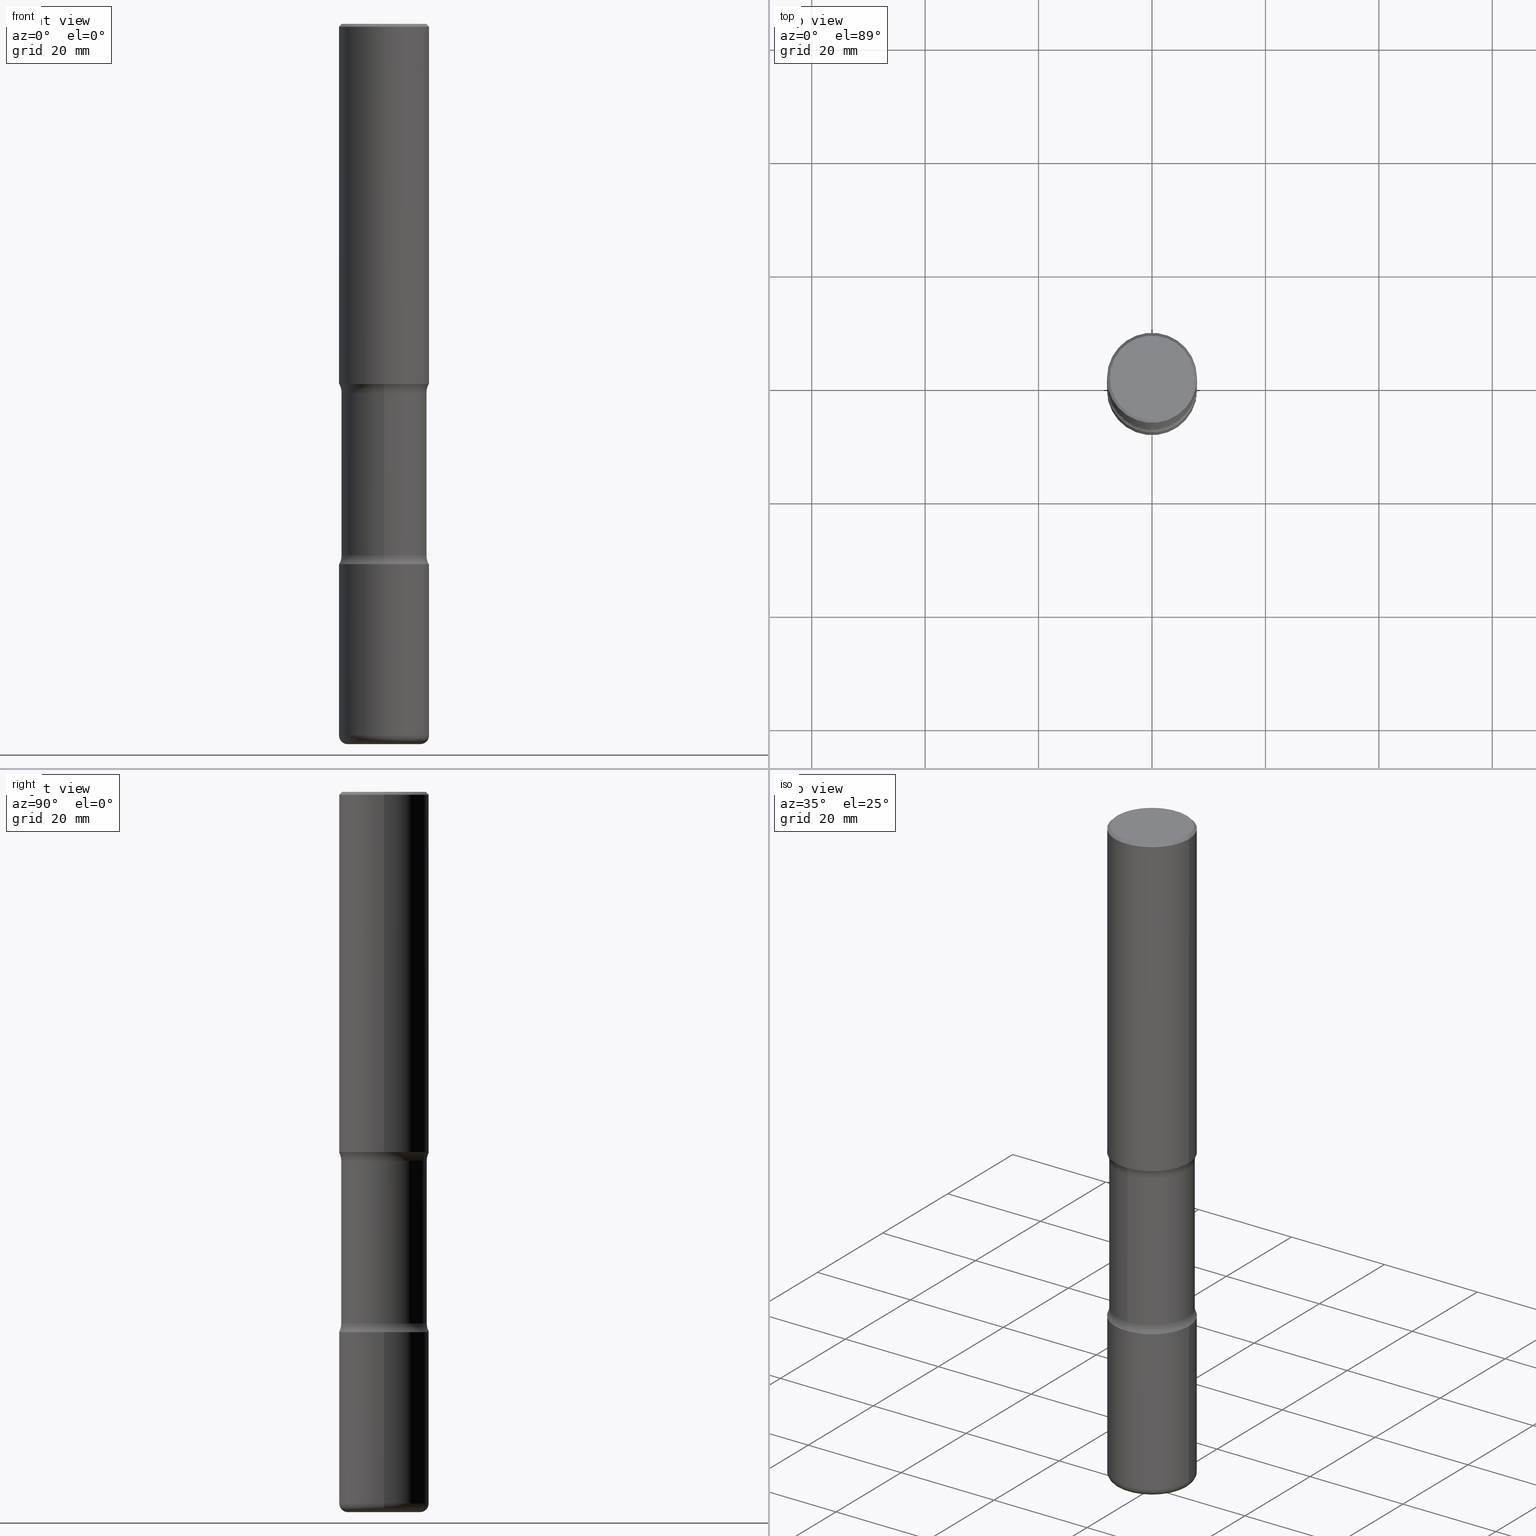
[diagram: canonical four-view strip — front | top / right | iso, engineering-drawing reading convention]
A machine part, canonical four-view strip (front | top / right | iso — engineering-drawing reading convention). The complete STEP part file that produces these views, byte-faithful:
ISO-10303-21;
HEADER;
FILE_DESCRIPTION (( 'STEP AP203' ),
    '1' );
FILE_NAME ('37908.STEP',
    '2024-03-02T01:17:36',
    ( '' ),
    ( '' ),
    'SwSTEP 2.0',
    'SolidWorks 2023',
    '' );
FILE_SCHEMA (( 'CONFIG_CONTROL_DESIGN' ));
ENDSEC;

DATA;
#1 = DIRECTION ( 'NONE',  ( 6.860497997771529985E-15, 1.000000000000000000, 0.000000000000000000 ) ) ;
#2 = CIRCLE ( 'NONE', #525, 0.3125000000000002776 ) ;
#3 = PERSON_AND_ORGANIZATION ( #505, #123 ) ;
#4 = APPROVAL_PERSON_ORGANIZATION ( #538, #241, #91 ) ;
#5 = CARTESIAN_POINT ( 'NONE',  ( 0.000000000000000000, 0.000000000000000000, 0.000000000000000000 ) ) ;
#6 = CYLINDRICAL_SURFACE ( 'NONE', #286, 0.2968750000000000000 ) ;
#7 = DIRECTION ( 'NONE',  ( 6.860497997771529985E-15, 1.000000000000000000, 0.000000000000000000 ) ) ;
#8 = CARTESIAN_POINT ( 'NONE',  ( 1.208061590255457820E-28, -1.724791781388514630E-14, -4.940000000000001279 ) ) ;
#9 = AXIS2_PLACEMENT_3D ( 'NONE', #40, #377, #251 ) ;
#10 = CYLINDRICAL_SURFACE ( 'NONE', #163, 0.3125000000000002220 ) ;
#11 = AXIS2_PLACEMENT_3D ( 'NONE', #481, #136, #193 ) ;
#12 = DATE_TIME_ROLE ( 'creation_date' ) ;
#13 = DIRECTION ( 'NONE',  ( -2.438088387897960049E-29, 3.491481338843145188E-15, 1.000000000000000000 ) ) ;
#14 = ORIENTED_EDGE ( 'NONE', *, *, #162, .T. ) ;
#15 = CARTESIAN_POINT ( 'NONE',  ( 4.890937612370289799E-31, -6.982962677686315028E-17, -0.02000000000000006981 ) ) ;
#16 = VERTEX_POINT ( 'NONE', #245 ) ;
#17 = CARTESIAN_POINT ( 'NONE',  ( -0.3125000000000002220, 2.220446049250314659E-15, -1.537167215704659073E-29 ) ) ;
#18 = DIRECTION ( 'NONE',  ( 1.000000000000000000, 0.000000000000000000, 0.000000000000000000 ) ) ;
#19 = COORDINATED_UNIVERSAL_TIME_OFFSET ( 5, 0, .BEHIND. ) ;
#20 = AXIS2_PLACEMENT_3D ( 'NONE', #231, #402, #407 ) ;
#21 = EDGE_CURVE ( 'NONE', #257, #173, #409, .T. ) ;
#22 = AXIS2_PLACEMENT_3D ( 'NONE', #145, #316, #492 ) ;
#23 = DIRECTION ( 'NONE',  ( 6.982962677686265133E-15, 1.000000000000000000, -3.680805717779217644E-15 ) ) ;
#24 = EDGE_CURVE ( 'NONE', #469, #311, #373, .T. ) ;
#25 = DIRECTION ( 'NONE',  ( -1.000000000000000000, 6.982962677686265922E-15, -4.876176775795935793E-29 ) ) ;
#26 = DIRECTION ( 'NONE',  ( 2.521457479434076939E-29, -3.382661233743975076E-15, -1.000000000000000000 ) ) ;
#27 = DIRECTION ( 'NONE',  ( 2.445468806185136597E-29, -3.491481338843145583E-15, -1.000000000000000000 ) ) ;
#28 = FACE_OUTER_BOUND ( 'NONE', #154, .T. ) ;
#29 = FACE_OUTER_BOUND ( 'NONE', #381, .T. ) ;
#30 = CIRCLE ( 'NONE', #500, 0.3125000000000002220 ) ;
#31 = AXIS2_PLACEMENT_3D ( 'NONE', #39, #211, #1 ) ;
#32 = FACE_OUTER_BOUND ( 'NONE', #261, .T. ) ;
#33 = ADVANCED_FACE ( 'NONE', ( #432 ), #10, .T. ) ;
#34 = DIRECTION ( 'NONE',  ( 0.7071067811865472397, -7.319954787623254468E-15, -0.7071067811865477948 ) ) ;
#35 = MANIFOLD_SOLID_BREP ( 'Body-Move/Copy2[4]', #37 ) ;
#36 = MANIFOLD_SOLID_BREP ( 'Body-Move/Copy2[2]', #269 ) ;
#37 = CLOSED_SHELL ( 'NONE', ( #44, #356, #501, #557, #265, #306, #90, #497 ) ) ;
#38 = CIRCLE ( 'NONE', #301, 0.2968750000000000000 ) ;
#39 = CARTESIAN_POINT ( 'NONE',  ( -2.894272592809775342E-15, -0.4218750000000130451, -3.689484635215506625 ) ) ;
#40 = CARTESIAN_POINT ( 'NONE',  ( -1.043851414335219820E-46, 1.490343170380447200E-32, 4.268512490100411279E-18 ) ) ;
#41 = AXIS2_PLACEMENT_3D ( 'NONE', #128, #225, #395 ) ;
#42 = AXIS2_PLACEMENT_3D ( 'NONE', #416, #205, #60 ) ;
#43 = ORIENTED_EDGE ( 'NONE', *, *, #326, .F. ) ;
#44 = ADVANCED_FACE ( 'NONE', ( #169 ), #6, .T. ) ;
#45 = ORIENTED_EDGE ( 'NONE', *, *, #94, .T. ) ;
#46 = ORIENTED_EDGE ( 'NONE', *, *, #508, .T. ) ;
#47 = DATE_TIME_ROLE ( 'classification_date' ) ;
#48 = ADVANCED_FACE ( 'NONE', ( #125 ), #346, .T. ) ;
#49 = CARTESIAN_POINT ( 'NONE',  ( -0.3125000000000000000, 2.220446049250313081E-15, -1.537167215704658232E-29 ) ) ;
#50 = AXIS2_PLACEMENT_3D ( 'NONE', #178, #541, #25 ) ;
#51 = VECTOR ( 'NONE', #515, 39.37007874015748143 ) ;
#52 = ORIENTED_EDGE ( 'NONE', *, *, #284, .F. ) ;
#53 = PRODUCT_DEFINITION_SHAPE ( 'NONE', 'NONE',  #414 ) ;
#54 = CARTESIAN_POINT ( 'NONE',  ( 9.022519586318873617E-29, -1.288176675380345821E-14, -3.689484635215508401 ) ) ;
#55 = ADVANCED_FACE ( 'NONE', ( #307 ), #187, .F. ) ;
#56 = APPLICATION_PROTOCOL_DEFINITION ( 'international standard', 'config_control_design', 1994, #275 ) ;
#57 = DIRECTION ( 'NONE',  ( 2.521457479434076939E-29, -3.382661233743975076E-15, -1.000000000000000000 ) ) ;
#58 = CARTESIAN_POINT ( 'NONE',  ( 6.113672015462840371E-29, -8.728703347107863365E-15, -2.499999999999999556 ) ) ;
#59 = DIRECTION ( 'NONE',  ( 1.000000000000000000, -6.982962677686266711E-15, 0.000000000000000000 ) ) ;
#60 = DIRECTION ( 'NONE',  ( 6.982962677686266711E-15, 1.000000000000000000, -3.680805717779217644E-15 ) ) ;
#61 = COORDINATED_UNIVERSAL_TIME_OFFSET ( 5, 0, .BEHIND. ) ;
#62 = CARTESIAN_POINT ( 'NONE',  ( 9.017921104037724021E-29, -1.288835204215942242E-14, -3.689484635215508401 ) ) ;
#63 = EDGE_CURVE ( 'NONE', #506, #504, #510, .T. ) ;
#64 = ORIENTED_EDGE ( 'NONE', *, *, #133, .T. ) ;
#65 = AXIS2_PLACEMENT_3D ( 'NONE', #533, #223, #350 ) ;
#66 = EDGE_LOOP ( 'NONE', ( #465, #67, #477, #197 ) ) ;
#67 = ORIENTED_EDGE ( 'NONE', *, *, #24, .F. ) ;
#68 = AXIS2_PLACEMENT_3D ( 'NONE', #551, #201, #132 ) ;
#69 = AXIS2_PLACEMENT_3D ( 'NONE', #363, #57, #450 ) ;
#70 = LINE ( 'NONE', #560, #51 ) ;
#71 = CARTESIAN_POINT ( 'NONE',  ( 2.182175836777050644E-15, 0.3124999999999870104, -3.750000000000000888 ) ) ;
#72 = ORIENTED_EDGE ( 'NONE', *, *, #520, .F. ) ;
#73 = DIRECTION ( 'NONE',  ( 1.000000000000000000, -6.982962677686265133E-15, 0.000000000000000000 ) ) ;
#74 = ADVANCED_FACE ( 'NONE', ( #146 ), #530, .T. ) ;
#75 = EDGE_LOOP ( 'NONE', ( #353, #194, #391, #215 ) ) ;
#76 = AXIS2_PLACEMENT_3D ( 'NONE', #8, #343, #526 ) ;
#77 = DATE_AND_TIME ( #386, #419 ) ;
#78 = EDGE_LOOP ( 'NONE', ( #528, #216 ) ) ;
#79 = CARTESIAN_POINT ( 'NONE',  ( 0.000000000000000000, 0.000000000000000000, 0.000000000000000000 ) ) ;
#80 = MANIFOLD_SOLID_BREP ( 'Body-Move/Copy2[1]', #293 ) ;
#81 = EDGE_LOOP ( 'NONE', ( #295, #302, #425, #64 ) ) ;
#82 = LINE ( 'NONE', #17, #335 ) ;
#83 = VECTOR ( 'NONE', #142, 39.37007874015748143 ) ;
#84 = DIRECTION ( 'NONE',  ( 1.000000000000000000, -6.982962677686262766E-15, 0.000000000000000000 ) ) ;
#85 = DIRECTION ( 'NONE',  ( 1.000000000000000000, -6.982962677686266711E-15, 0.000000000000000000 ) ) ;
#86 = ORIENTED_EDGE ( 'NONE', *, *, #124, .F. ) ;
#87 = CARTESIAN_POINT ( 'NONE',  ( -2.090307983695953569E-15, -0.2968750000000091038, -2.560515364784489822 ) ) ;
#88 = APPROVAL_STATUS ( 'not_yet_approved' ) ;
#89 = ORIENTED_EDGE ( 'NONE', *, *, #548, .T. ) ;
#90 = ADVANCED_FACE ( 'NONE', ( #174 ), #344, .F. ) ;
#91 = APPROVAL_ROLE ( '' ) ;
#92 = DIRECTION ( 'NONE',  ( 2.521457479434076939E-29, -3.382661233743975076E-15, -1.000000000000000000 ) ) ;
#93 = VERTEX_POINT ( 'NONE', #121 ) ;
#94 = EDGE_CURVE ( 'NONE', #111, #325, #114, .T. ) ;
#95 = FACE_OUTER_BOUND ( 'NONE', #304, .T. ) ;
#96 = PERSON_AND_ORGANIZATION_ROLE ( 'classification_officer' ) ;
#97 = PERSON_AND_ORGANIZATION_ROLE ( 'design_owner' ) ;
#98 = CARTESIAN_POINT ( 'NONE',  ( 6.113672015462840371E-29, -8.728703347107863365E-15, -2.499999999999999556 ) ) ;
#99 = DIRECTION ( 'NONE',  ( -2.445468806185136597E-29, 3.491481338843145583E-15, 1.000000000000000000 ) ) ;
#100 = CARTESIAN_POINT ( 'NONE',  ( 0.3125000000000000000, -1.943009365066209992E-14, -4.940000000000001279 ) ) ;
#101 = DIRECTION ( 'NONE',  ( -2.445468806185136597E-29, 3.491481338843145583E-15, 1.000000000000000000 ) ) ;
#102 = AXIS2_PLACEMENT_3D ( 'NONE', #495, #138, #479 ) ;
#103 = CC_DESIGN_PERSON_AND_ORGANIZATION_ASSIGNMENT ( #475, #482, ( #537 ) ) ;
#104 = CARTESIAN_POINT ( 'NONE',  ( 0.000000000000000000, 0.000000000000000000, 0.000000000000000000 ) ) ;
#105 = DIRECTION ( 'NONE',  ( 2.438088387897960049E-29, -3.491481338843145188E-15, -1.000000000000000000 ) ) ;
#106 = ORIENTED_EDGE ( 'NONE', *, *, #348, .T. ) ;
#107 = AXIS2_PLACEMENT_3D ( 'NONE', #310, #144, #490 ) ;
#108 = DIRECTION ( 'NONE',  ( 2.521457479434076939E-29, -3.382661233743974681E-15, -1.000000000000000000 ) ) ;
#109 = CARTESIAN_POINT ( 'NONE',  ( 1.222734403092568523E-28, -1.745740669421572989E-14, -5.000000000000000000 ) ) ;
#110 = VERTEX_POINT ( 'NONE', #355 ) ;
#111 = VERTEX_POINT ( 'NONE', #150 ) ;
#112 = ORIENTED_EDGE ( 'NONE', *, *, #148, .T. ) ;
#113 = ORIENTED_EDGE ( 'NONE', *, *, #330, .T. ) ;
#114 = CIRCLE ( 'NONE', #333, 0.3125000000000002220 ) ;
#115 = CIRCLE ( 'NONE', #11, 0.2525000000000002798 ) ;
#116 = UNCERTAINTY_MEASURE_WITH_UNIT (LENGTH_MEASURE( 1.000000000000000082E-05 ), #166, 'distance_accuracy_value', 'NONE');
#117 = CARTESIAN_POINT ( 'NONE',  ( 6.113672015462840371E-29, -8.728703347107863365E-15, -2.499999999999999556 ) ) ;
#118 =( LENGTH_UNIT ( ) NAMED_UNIT ( * ) SI_UNIT ( $, .METRE. ) );
#119 = PRODUCT_RELATED_PRODUCT_CATEGORY ( 'detail', '', ( #283 ) ) ;
#120 = ADVANCED_FACE ( 'NONE', ( #396 ), #207, .T. ) ;
#121 = CARTESIAN_POINT ( 'NONE',  ( -2.090307983695922804E-15, -0.2968750000000128786, -3.689484635215507069 ) ) ;
#122 = APPROVAL_DATE_TIME ( #448, #354 ) ;
#123 = ORGANIZATION ( 'UNSPECIFIED', 'UNSPECIFIED', '' ) ;
#124 = EDGE_CURVE ( 'NONE', #504, #323, #135, .T. ) ;
#125 = FACE_OUTER_BOUND ( 'NONE', #376, .T. ) ;
#126 = ORIENTED_EDGE ( 'NONE', *, *, #546, .F. ) ;
#127 = ORIENTED_EDGE ( 'NONE', *, *, #532, .T. ) ;
#128 = CARTESIAN_POINT ( 'NONE',  ( 1.222734403092568523E-28, -1.745740669421572989E-14, -5.000000000000000000 ) ) ;
#129 = PLANE ( 'NONE',  #242 ) ;
#130 = PERSON_AND_ORGANIZATION ( #505, #123 ) ;
#131 = ORIENTED_EDGE ( 'NONE', *, *, #405, .T. ) ;
#132 = DIRECTION ( 'NONE',  ( 6.982962677686265133E-15, 1.000000000000000000, -3.496765431890254947E-15 ) ) ;
#133 = EDGE_CURVE ( 'NONE', #392, #93, #523, .T. ) ;
#134 = EDGE_LOOP ( 'NONE', ( #112, #498, #52, #72 ) ) ;
#135 = CIRCLE ( 'NONE', #20, 0.3125000000000002776 ) ;
#136 = DIRECTION ( 'NONE',  ( -2.445468806185136597E-29, 3.491481338843145583E-15, 1.000000000000000000 ) ) ;
#137 = SHAPE_DEFINITION_REPRESENTATION ( #53, #462 ) ;
#138 = DIRECTION ( 'NONE',  ( 2.445468806185136597E-29, -3.491481338843145583E-15, -1.000000000000000000 ) ) ;
#139 = EDGE_CURVE ( 'NONE', #158, #160, #455, .T. ) ;
#140 = ORIENTED_EDGE ( 'NONE', *, *, #233, .F. ) ;
#141 = DIRECTION ( 'NONE',  ( 2.521457479434076939E-29, -3.382661233743975076E-15, -1.000000000000000000 ) ) ;
#142 = DIRECTION ( 'NONE',  ( -0.7071067811865472397, 2.468850131082253905E-15, -0.7071067811865477948 ) ) ;
#143 = DIRECTION ( 'NONE',  ( 1.000000000000000000, -6.982962677686266711E-15, 0.000000000000000000 ) ) ;
#144 = DIRECTION ( 'NONE',  ( -2.445468806185136597E-29, 3.491481338843145583E-15, 1.000000000000000000 ) ) ;
#145 = CARTESIAN_POINT ( 'NONE',  ( 2.945937379648955300E-15, 0.4218749999999909517, -2.560515364784492487 ) ) ;
#146 = FACE_OUTER_BOUND ( 'NONE', #134, .T. ) ;
#147 = VECTOR ( 'NONE', #327, 39.37007874015748143 ) ;
#148 = EDGE_CURVE ( 'NONE', #325, #111, #30, .T. ) ;
#149 = TOROIDAL_SURFACE ( 'NONE', #429, 0.4218750000000000555, 0.1250000000000000000 ) ;
#150 = CARTESIAN_POINT ( 'NONE',  ( -0.3125000000000002220, -2.178820437692046306E-15, -2.499999999999999556 ) ) ;
#151 = DIRECTION ( 'NONE',  ( -1.000000000000000000, 6.982962677686265922E-15, -4.876176775795935793E-29 ) ) ;
#152 = ORIENTED_EDGE ( 'NONE', *, *, #217, .F. ) ;
#153 = CYLINDRICAL_SURFACE ( 'NONE', #42, 0.2968750000000000000 ) ;
#154 = EDGE_LOOP ( 'NONE', ( #203, #380, #382, #458 ) ) ;
#155 = CARTESIAN_POINT ( 'NONE',  ( 0.2525000000000002798, -1.922060477033151318E-14, -5.000000000000000000 ) ) ;
#156 = AXIS2_PLACEMENT_3D ( 'NONE', #447, #476, #367 ) ;
#157 = VECTOR ( 'NONE', #34, 39.37007874015748143 ) ;
#158 = VERTEX_POINT ( 'NONE', #313 ) ;
#159 = CARTESIAN_POINT ( 'NONE',  ( 0.2525000000000002798, -1.901111589000092644E-14, -4.940000000000001279 ) ) ;
#160 = VERTEX_POINT ( 'NONE', #237 ) ;
#161 = EDGE_LOOP ( 'NONE', ( #442, #259 ) ) ;
#162 = EDGE_CURVE ( 'NONE', #206, #274, #228, .T. ) ;
#163 = AXIS2_PLACEMENT_3D ( 'NONE', #5, #338, #292 ) ;
#164 = AXIS2_PLACEMENT_3D ( 'NONE', #58, #13, #443 ) ;
#165 = CARTESIAN_POINT ( 'NONE',  ( 4.890937612370289799E-31, -6.982962677686315028E-17, -0.02000000000000006981 ) ) ;
#166 =( CONVERSION_BASED_UNIT ( 'INCH', #340 ) LENGTH_UNIT ( ) NAMED_UNIT ( #503 ) );
#167 = CARTESIAN_POINT ( 'NONE',  ( 1.208061590255457820E-28, -1.724791781388514630E-14, -4.940000000000001279 ) ) ;
#168 = DIRECTION ( 'NONE',  ( 1.000000000000000000, -6.982962677686266711E-15, 0.000000000000000000 ) ) ;
#169 = FACE_OUTER_BOUND ( 'NONE', #423, .T. ) ;
#170 = ORIENTED_EDGE ( 'NONE', *, *, #471, .T. ) ;
#171 = CARTESIAN_POINT ( 'NONE',  ( 0.000000000000000000, 0.000000000000000000, 0.000000000000000000 ) ) ;
#172 = EDGE_LOOP ( 'NONE', ( #113, #282, #140, #152 ) ) ;
#173 = VERTEX_POINT ( 'NONE', #87 ) ;
#174 = FACE_OUTER_BOUND ( 'NONE', #81, .T. ) ;
#175 = AXIS2_PLACEMENT_3D ( 'NONE', #384, #334, #518 ) ;
#176 = CARTESIAN_POINT ( 'NONE',  ( 1.232232987248685960E-28, -1.732138156284176685E-14, -5.000000000000000000 ) ) ;
#177 = FACE_OUTER_BOUND ( 'NONE', #300, .T. ) ;
#178 = CARTESIAN_POINT ( 'NONE',  ( 2.042516583223231356E-15, 0.2924999999999998157, -1.019124035366569212E-15 ) ) ;
#179 = APPROVAL_DATE_TIME ( #266, #241 ) ;
#180 = ORIENTED_EDGE ( 'NONE', *, *, #438, .T. ) ;
#181 = DIRECTION ( 'NONE',  ( -2.445468806185136877E-29, 3.491481338843145188E-15, 1.000000000000000000 ) ) ;
#182 = DIRECTION ( 'NONE',  ( -2.445468806185136597E-29, 3.491481338843145583E-15, 1.000000000000000000 ) ) ;
#183 = ORIENTED_EDGE ( 'NONE', *, *, #148, .F. ) ;
#184 = CIRCLE ( 'NONE', #220, 0.1250000000000000000 ) ;
#185 = PERSON_AND_ORGANIZATION ( #505, #123 ) ;
#186 = ORIENTED_EDGE ( 'NONE', *, *, #162, .F. ) ;
#187 = PLANE ( 'NONE',  #50 ) ;
#188 = APPROVAL_STATUS ( 'not_yet_approved' ) ;
#189 = LINE ( 'NONE', #406, #147 ) ;
#190 = DIRECTION ( 'NONE',  ( -2.445468806185136597E-29, 3.491481338843145583E-15, 1.000000000000000000 ) ) ;
#191 = DIRECTION ( 'NONE',  ( 1.000000000000000000, -6.982962677686266711E-15, 4.876176775795936353E-29 ) ) ;
#192 = FACE_OUTER_BOUND ( 'NONE', #263, .T. ) ;
#193 = DIRECTION ( 'NONE',  ( 1.000000000000000000, -6.982962677686261977E-15, 0.000000000000000000 ) ) ;
#194 = ORIENTED_EDGE ( 'NONE', *, *, #124, .T. ) ;
#195 = EDGE_CURVE ( 'NONE', #274, #392, #212, .T. ) ;
#196 = AXIS2_PLACEMENT_3D ( 'NONE', #171, #558, #294 ) ;
#197 = ORIENTED_EDGE ( 'NONE', *, *, #421, .T. ) ;
#198 = CC_DESIGN_APPROVAL ( #354, ( #414 ) ) ;
#199 = CC_DESIGN_APPROVAL ( #241, ( #445 ) ) ;
#200 = DIRECTION ( 'NONE',  ( 6.982962677686265922E-15, 1.000000000000000000, -3.382661233743975076E-15 ) ) ;
#201 = DIRECTION ( 'NONE',  ( 2.521457479434076939E-29, -3.382661233743975076E-15, -1.000000000000000000 ) ) ;
#202 = DIRECTION ( 'NONE',  ( 2.521457479434076939E-29, -3.382661233743975076E-15, -1.000000000000000000 ) ) ;
#203 = ORIENTED_EDGE ( 'NONE', *, *, #508, .F. ) ;
#204 = LINE ( 'NONE', #550, #157 ) ;
#205 = DIRECTION ( 'NONE',  ( 2.521457479434076939E-29, -3.382661233743975076E-15, -1.000000000000000000 ) ) ;
#206 = VERTEX_POINT ( 'NONE', #484 ) ;
#207 = CONICAL_SURFACE ( 'NONE', #102, 0.3124999999999998890, 0.7853981633974479459 ) ;
#208 = VECTOR ( 'NONE', #412, 39.37007874015748143 ) ;
#209 = DIRECTION ( 'NONE',  ( 1.000000000000000000, -6.982962677686261977E-15, 0.000000000000000000 ) ) ;
#210 = CC_DESIGN_PERSON_AND_ORGANIZATION_ASSIGNMENT ( #545, #375, ( #414 ) ) ;
#211 = DIRECTION ( 'NONE',  ( 1.000000000000000000, -6.860497997771530774E-15, 4.842131541558068249E-29 ) ) ;
#212 = CIRCLE ( 'NONE', #387, 0.1250000000000001388 ) ;
#213 = CIRCLE ( 'NONE', #65, 0.3125000000000001665 ) ;
#214 = EDGE_CURVE ( 'NONE', #323, #468, #189, .T. ) ;
#215 = ORIENTED_EDGE ( 'NONE', *, *, #415, .F. ) ;
#216 = ORIENTED_EDGE ( 'NONE', *, *, #326, .T. ) ;
#217 = EDGE_CURVE ( 'NONE', #219, #323, #535, .T. ) ;
#218 = DIRECTION ( 'NONE',  ( 1.000000000000000000, -6.982962677686266711E-15, 4.876176775795936353E-29 ) ) ;
#219 = VERTEX_POINT ( 'NONE', #155 ) ;
#220 = AXIS2_PLACEMENT_3D ( 'NONE', #247, #431, #7 ) ;
#221 = DIRECTION ( 'NONE',  ( 6.982962677686265922E-15, 1.000000000000000000, -3.382661233743975076E-15 ) ) ;
#222 = EDGE_CURVE ( 'NONE', #506, #219, #248, .T. ) ;
#223 = DIRECTION ( 'NONE',  ( 2.521457479434076939E-29, -3.382661233743975076E-15, -1.000000000000000000 ) ) ;
#224 = DIRECTION ( 'NONE',  ( 6.982962677686265922E-15, 1.000000000000000000, -3.382661233743975076E-15 ) ) ;
#225 = DIRECTION ( 'NONE',  ( 2.438088387897960049E-29, -3.491481338843145188E-15, -1.000000000000000000 ) ) ;
#226 = CALENDAR_DATE ( 2024, 1, 3 ) ;
#227 = ORIENTED_EDGE ( 'NONE', *, *, #520, .T. ) ;
#228 = CIRCLE ( 'NONE', #68, 0.3125000000000001665 ) ;
#229 = AXIS2_PLACEMENT_3D ( 'NONE', #547, #329, #239 ) ;
#230 = MECHANICAL_CONTEXT ( 'NONE', #250, 'mechanical' ) ;
#231 = CARTESIAN_POINT ( 'NONE',  ( 1.208061590255457820E-28, -1.724791781388514630E-14, -4.940000000000001279 ) ) ;
#232 = LINE ( 'NONE', #542, #456 ) ;
#233 = EDGE_CURVE ( 'NONE', #323, #504, #321, .T. ) ;
#234 = CARTESIAN_POINT ( 'NONE',  ( 9.170508023194261117E-29, -1.309305502066179584E-14, -3.749999999999999556 ) ) ;
#235 = VECTOR ( 'NONE', #314, 39.37007874015748143 ) ;
#236 = ORIENTED_EDGE ( 'NONE', *, *, #284, .T. ) ;
#237 = CARTESIAN_POINT ( 'NONE',  ( -2.143905624303545238E-15, -0.3125000000000091593, -2.499999999999998668 ) ) ;
#238 = ORIENTED_EDGE ( 'NONE', *, *, #415, .T. ) ;
#239 = DIRECTION ( 'NONE',  ( 6.982962677686265922E-15, 1.000000000000000000, -3.382661233743975076E-15 ) ) ;
#240 = AXIS2_PLACEMENT_3D ( 'NONE', #361, #141, #309 ) ;
#241 = APPROVAL ( #433, 'UNSPECIFIED' ) ;
#242 = AXIS2_PLACEMENT_3D ( 'NONE', #264, #298, #303 ) ;
#243 = FACE_OUTER_BOUND ( 'NONE', #161, .T. ) ;
#244 = ORIENTED_EDGE ( 'NONE', *, *, #133, .F. ) ;
#245 = CARTESIAN_POINT ( 'NONE',  ( -0.3124999999999998890, 2.112346210000094260E-15, -0.02000000000000006981 ) ) ;
#246 = ADVANCED_FACE ( 'NONE', ( #29 ), #369, .T. ) ;
#247 = CARTESIAN_POINT ( 'NONE',  ( -2.894272592809803347E-15, -0.4218750000000091593, -2.560515364784489378 ) ) ;
#248 = CIRCLE ( 'NONE', #463, 0.2525000000000002798 ) ;
#249 = TOROIDAL_SURFACE ( 'NONE', #502, 0.4218750000000001110, 0.1250000000000001388 ) ;
#250 = APPLICATION_CONTEXT ( 'configuration controlled 3d designs of mechanical parts and assemblies' ) ;
#251 = DIRECTION ( 'NONE',  ( 1.000000000000000000, -6.982962677686266711E-15, 4.876067333457692840E-29 ) ) ;
#252 = PERSON_AND_ORGANIZATION_ROLE ( 'design_supplier' ) ;
#253 = ORIENTED_EDGE ( 'NONE', *, *, #471, .F. ) ;
#254 = APPROVAL ( #88, 'UNSPECIFIED' ) ;
#255 = AXIS2_PLACEMENT_3D ( 'NONE', #234, #105, #151 ) ;
#256 = ADVANCED_FACE ( 'NONE', ( #192 ), #365, .T. ) ;
#257 = VERTEX_POINT ( 'NONE', #332 ) ;
#258 = DIRECTION ( 'NONE',  ( -2.445468806185136597E-29, 3.491481338843145583E-15, 1.000000000000000000 ) ) ;
#259 = ORIENTED_EDGE ( 'NONE', *, *, #438, .F. ) ;
#260 = PERSON_AND_ORGANIZATION ( #505, #123 ) ;
#261 = EDGE_LOOP ( 'NONE', ( #559, #474, #436, #86 ) ) ;
#262 = CARTESIAN_POINT ( 'NONE',  ( 0.3125000000000002220, -1.091087918388482329E-14, -2.499999999999999556 ) ) ;
#263 = EDGE_LOOP ( 'NONE', ( #522, #45, #227, #428 ) ) ;
#264 = CARTESIAN_POINT ( 'NONE',  ( 9.170508023194261117E-29, -1.309305502066179584E-14, -3.749999999999999556 ) ) ;
#265 = ADVANCED_FACE ( 'NONE', ( #243 ), #511, .F. ) ;
#266 = DATE_AND_TIME ( #534, #273 ) ;
#267 = PLANE ( 'NONE',  #255 ) ;
#268 = ORIENTED_EDGE ( 'NONE', *, *, #195, .F. ) ;
#269 = CLOSED_SHELL ( 'NONE', ( #74, #246, #120, #55, #370, #256 ) ) ;
#270 = PLANE ( 'NONE',  #164 ) ;
#271 = ORIENTED_EDGE ( 'NONE', *, *, #21, .T. ) ;
#272 = TOROIDAL_SURFACE ( 'NONE', #229, 0.4218750000000000555, 0.1250000000000000000 ) ;
#273 = LOCAL_TIME ( 20, 17, 36.00000000000000000, #351 ) ;
#274 = VERTEX_POINT ( 'NONE', #71 ) ;
#275 = APPLICATION_CONTEXT ( 'configuration controlled 3d designs of mechanical parts and assemblies' ) ;
#276 = DIRECTION ( 'NONE',  ( 2.521457479434076939E-29, -3.382661233743975076E-15, -1.000000000000000000 ) ) ;
#277 = CARTESIAN_POINT ( 'NONE',  ( 4.890937612370289799E-31, -6.982962677686315028E-17, -0.02000000000000006981 ) ) ;
#278 = EDGE_CURVE ( 'NONE', #206, #93, #478, .T. ) ;
#279 = AXIS2_PLACEMENT_3D ( 'NONE', #165, #336, #168 ) ;
#280 = COORDINATED_UNIVERSAL_TIME_OFFSET ( 5, 0, .BEHIND. ) ;
#281 = ORIENTED_EDGE ( 'NONE', *, *, #393, .F. ) ;
#282 = ORIENTED_EDGE ( 'NONE', *, *, #63, .T. ) ;
#283 = PRODUCT ( '37908', '37908', '', ( #230 ) ) ;
#284 = EDGE_CURVE ( 'NONE', #110, #16, #317, .T. ) ;
#285 = ORIENTED_EDGE ( 'NONE', *, *, #546, .T. ) ;
#286 = AXIS2_PLACEMENT_3D ( 'NONE', #176, #342, #524 ) ;
#287 = CIRCLE ( 'NONE', #410, 0.2924999999999998157 ) ;
#288 = DIRECTION ( 'NONE',  ( 2.521457479434076939E-29, -3.382661233743974681E-15, -1.000000000000000000 ) ) ;
#289 = CARTESIAN_POINT ( 'NONE',  ( 9.170508023194261117E-29, -1.309305502066179584E-14, -3.749999999999999556 ) ) ;
#290 = EDGE_CURVE ( 'NONE', #469, #16, #516, .T. ) ;
#291 = EDGE_LOOP ( 'NONE', ( #127, #238 ) ) ;
#292 = DIRECTION ( 'NONE',  ( 1.000000000000000000, -6.982962677686266711E-15, 4.876176775795936353E-29 ) ) ;
#293 = CLOSED_SHELL ( 'NONE', ( #33, #509, #48, #488, #451, #424 ) ) ;
#294 = DIRECTION ( 'NONE',  ( 1.000000000000000000, -6.982962677686266711E-15, 4.876176775795936353E-29 ) ) ;
#295 = ORIENTED_EDGE ( 'NONE', *, *, #278, .F. ) ;
#296 = FACE_OUTER_BOUND ( 'NONE', #172, .T. ) ;
#297 = DESIGN_CONTEXT ( 'detailed design', #275, 'design' ) ;
#298 = DIRECTION ( 'NONE',  ( -2.521457479434076939E-29, 3.382661233743974681E-15, 1.000000000000000000 ) ) ;
#299 = DIRECTION ( 'NONE',  ( -2.445468806185136597E-29, 3.491481338843145583E-15, 1.000000000000000000 ) ) ;
#300 = EDGE_LOOP ( 'NONE', ( #106, #14 ) ) ;
#301 = AXIS2_PLACEMENT_3D ( 'NONE', #62, #26, #454 ) ;
#302 = ORIENTED_EDGE ( 'NONE', *, *, #348, .F. ) ;
#303 = DIRECTION ( 'NONE',  ( -6.982962677686265922E-15, -1.000000000000000000, 3.382661233743974681E-15 ) ) ;
#304 = EDGE_LOOP ( 'NONE', ( #183, #328 ) ) ;
#305 = CARTESIAN_POINT ( 'NONE',  ( 9.017921104037724021E-29, -1.288835204215942242E-14, -3.689484635215508401 ) ) ;
#306 = ADVANCED_FACE ( 'NONE', ( #177 ), #129, .F. ) ;
#307 = FACE_OUTER_BOUND ( 'NONE', #78, .T. ) ;
#308 = APPROVAL_DATE_TIME ( #77, #254 ) ;
#309 = DIRECTION ( 'NONE',  ( 6.982962677686265922E-15, 1.000000000000000000, -3.496765431890253764E-15 ) ) ;
#310 = CARTESIAN_POINT ( 'NONE',  ( 1.208061590255457820E-28, -1.724791781388514630E-14, -4.940000000000001279 ) ) ;
#311 = VERTEX_POINT ( 'NONE', #529 ) ;
#312 = DIRECTION ( 'NONE',  ( 2.521457479434076939E-29, -3.382661233743975076E-15, -1.000000000000000000 ) ) ;
#313 = CARTESIAN_POINT ( 'NONE',  ( 2.182175836777019878E-15, 0.3124999999999913958, -2.500000000000000444 ) ) ;
#314 = DIRECTION ( 'NONE',  ( -2.445468806185136877E-29, 3.491481338843145188E-15, 1.000000000000000000 ) ) ;
#315 = AXIS2_PLACEMENT_3D ( 'NONE', #305, #92, #23 ) ;
#316 = DIRECTION ( 'NONE',  ( -1.000000000000000000, 6.982962677686265922E-15, -4.883557194083112340E-29 ) ) ;
#317 = CIRCLE ( 'NONE', #279, 0.3124999999999998890 ) ;
#318 = DIRECTION ( 'NONE',  ( 6.982962677686265922E-15, 1.000000000000000000, -3.496765431890253764E-15 ) ) ;
#319 = ORIENTED_EDGE ( 'NONE', *, *, #532, .F. ) ;
#320 = APPROVAL_ROLE ( '' ) ;
#321 = CIRCLE ( 'NONE', #397, 0.3125000000000002776 ) ;
#322 = TOROIDAL_SURFACE ( 'NONE', #76, 0.2525000000000002798, 0.05999999999999940797 ) ;
#323 = VERTEX_POINT ( 'NONE', #100 ) ;
#324 = ORIENTED_EDGE ( 'NONE', *, *, #457, .F. ) ;
#325 = VERTEX_POINT ( 'NONE', #262 ) ;
#326 = EDGE_CURVE ( 'NONE', #311, #469, #287, .T. ) ;
#327 = DIRECTION ( 'NONE',  ( -2.445468806185136877E-29, 3.491481338843145188E-15, 1.000000000000000000 ) ) ;
#328 = ORIENTED_EDGE ( 'NONE', *, *, #94, .F. ) ;
#329 = DIRECTION ( 'NONE',  ( 2.521457479434076939E-29, -3.382661233743975076E-15, -1.000000000000000000 ) ) ;
#330 = EDGE_CURVE ( 'NONE', #219, #506, #115, .T. ) ;
#331 = DATE_AND_TIME ( #556, #513 ) ;
#332 = CARTESIAN_POINT ( 'NONE',  ( 2.073067044938171961E-15, 0.2968749999999909517, -2.560515364784492043 ) ) ;
#333 = AXIS2_PLACEMENT_3D ( 'NONE', #394, #182, #59 ) ;
#334 = DIRECTION ( 'NONE',  ( 2.521457479434076939E-29, -3.382661233743975076E-15, -1.000000000000000000 ) ) ;
#335 = VECTOR ( 'NONE', #181, 39.37007874015748143 ) ;
#336 = DIRECTION ( 'NONE',  ( -2.445468806185136597E-29, 3.491481338843145583E-15, 1.000000000000000000 ) ) ;
#337 =( NAMED_UNIT ( * ) SI_UNIT ( $, .STERADIAN. ) SOLID_ANGLE_UNIT ( ) );
#338 = DIRECTION ( 'NONE',  ( -2.445468806185136597E-29, 3.491481338843145583E-15, 1.000000000000000000 ) ) ;
#339 = CARTESIAN_POINT ( 'NONE',  ( -0.2525000000000002798, -1.534537902552815526E-14, -5.000000000000000000 ) ) ;
#340 = LENGTH_MEASURE_WITH_UNIT ( LENGTH_MEASURE( 0.02539999999999999897 ), #118 );
#341 =( NAMED_UNIT ( * ) PLANE_ANGLE_UNIT ( ) SI_UNIT ( $, .RADIAN. ) );
#342 = DIRECTION ( 'NONE',  ( 2.521457479434076939E-29, -3.382661233743975076E-15, -1.000000000000000000 ) ) ;
#343 = DIRECTION ( 'NONE',  ( -2.445468806185136597E-29, 3.491481338843145583E-15, 1.000000000000000000 ) ) ;
#344 = TOROIDAL_SURFACE ( 'NONE', #417, 0.4218750000000001110, 0.1250000000000001388 ) ;
#345 = AXIS2_PLACEMENT_3D ( 'NONE', #117, #288, #466 ) ;
#346 = PLANE ( 'NONE',  #41 ) ;
#347 = EDGE_LOOP ( 'NONE', ( #186, #517, #485, #268 ) ) ;
#348 = EDGE_CURVE ( 'NONE', #274, #206, #213, .T. ) ;
#349 = APPROVAL_ROLE ( '' ) ;
#350 = DIRECTION ( 'NONE',  ( 6.982962677686265133E-15, 1.000000000000000000, -3.496765431890254947E-15 ) ) ;
#351 = COORDINATED_UNIVERSAL_TIME_OFFSET ( 5, 0, .BEHIND. ) ;
#352 = DIRECTION ( 'NONE',  ( 1.000000000000000000, -6.982962677686265133E-15, 0.000000000000000000 ) ) ;
#353 = ORIENTED_EDGE ( 'NONE', *, *, #405, .F. ) ;
#354 = APPROVAL ( #188, 'UNSPECIFIED' ) ;
#355 = CARTESIAN_POINT ( 'NONE',  ( 0.3124999999999998890, -2.213735251080466123E-15, -0.02000000000000006981 ) ) ;
#356 = ADVANCED_FACE ( 'NONE', ( #441 ), #249, .F. ) ;
#357 = TOROIDAL_SURFACE ( 'NONE', #107, 0.2525000000000002798, 0.05999999999999940797 ) ;
#358 = ORIENTED_EDGE ( 'NONE', *, *, #330, .F. ) ;
#359 = DIRECTION ( 'NONE',  ( -1.000000000000000000, 6.982962677686265922E-15, -4.883557194083112340E-29 ) ) ;
#360 = LINE ( 'NONE', #494, #208 ) ;
#361 = CARTESIAN_POINT ( 'NONE',  ( 6.018686173901665994E-29, -8.864728478481826400E-15, -2.499999999999999556 ) ) ;
#362 = SECURITY_CLASSIFICATION_LEVEL ( 'unclassified' ) ;
#363 = CARTESIAN_POINT ( 'NONE',  ( 6.171273093058203090E-29, -9.069431456984199816E-15, -2.560515364784490711 ) ) ;
#364 = CARTESIAN_POINT ( 'NONE',  ( -0.3124999999999998890, 2.112346210000094260E-15, -0.02000000000000006981 ) ) ;
#365 = CYLINDRICAL_SURFACE ( 'NONE', #196, 0.3125000000000000000 ) ;
#366 = CARTESIAN_POINT ( 'NONE',  ( 2.073067044938200360E-15, 0.2968749999999871214, -3.689484635215509289 ) ) ;
#367 = DIRECTION ( 'NONE',  ( -1.000000000000000000, 7.105427357600997914E-15, 0.000000000000000000 ) ) ;
#368 = FACE_OUTER_BOUND ( 'NONE', #521, .T. ) ;
#369 = CONICAL_SURFACE ( 'NONE', #434, 0.3124999999999998890, 0.7853981633974479459 ) ;
#370 = ADVANCED_FACE ( 'NONE', ( #95 ), #270, .F. ) ;
#371 = DIRECTION ( 'NONE',  ( -1.000000000000000000, 6.982962677686266711E-15, 0.000000000000000000 ) ) ;
#372 = CALENDAR_DATE ( 2024, 1, 3 ) ;
#373 = CIRCLE ( 'NONE', #9, 0.2924999999999998157 ) ;
#374 =( GEOMETRIC_REPRESENTATION_CONTEXT ( 3 ) GLOBAL_UNCERTAINTY_ASSIGNED_CONTEXT ( ( #116 ) ) GLOBAL_UNIT_ASSIGNED_CONTEXT ( ( #166, #341, #337 ) ) REPRESENTATION_CONTEXT ( 'NONE', 'WORKASPACE' ) );
#375 = PERSON_AND_ORGANIZATION_ROLE ( 'creator' ) ;
#376 = EDGE_LOOP ( 'NONE', ( #358, #426 ) ) ;
#377 = DIRECTION ( 'NONE',  ( -2.445468806185136597E-29, 3.491481338843145583E-15, 1.000000000000000000 ) ) ;
#378 = AXIS2_PLACEMENT_3D ( 'NONE', #554, #101, #352 ) ;
#379 = CC_DESIGN_APPROVAL ( #254, ( #537 ) ) ;
#380 = ORIENTED_EDGE ( 'NONE', *, *, #21, .F. ) ;
#381 = EDGE_LOOP ( 'NONE', ( #43, #89, #236, #480 ) ) ;
#382 = ORIENTED_EDGE ( 'NONE', *, *, #393, .T. ) ;
#383 = CARTESIAN_POINT ( 'NONE',  ( 9.022519586318873617E-29, -1.288176675380345821E-14, -3.689484635215508401 ) ) ;
#384 = CARTESIAN_POINT ( 'NONE',  ( 6.171273093058203090E-29, -9.069431456984199816E-15, -2.560515364784490711 ) ) ;
#385 = ORIENTED_EDGE ( 'NONE', *, *, #457, .T. ) ;
#386 = CALENDAR_DATE ( 2024, 1, 3 ) ;
#387 = AXIS2_PLACEMENT_3D ( 'NONE', #536, #359, #540 ) ;
#388 = CIRCLE ( 'NONE', #472, 0.3124999999999998890 ) ;
#389 = DIRECTION ( 'NONE',  ( 2.521457479434076939E-29, -3.382661233743975076E-15, -1.000000000000000000 ) ) ;
#390 = LOCAL_TIME ( 20, 17, 36.00000000000000000, #19 ) ;
#391 = ORIENTED_EDGE ( 'NONE', *, *, #214, .T. ) ;
#392 = VERTEX_POINT ( 'NONE', #366 ) ;
#393 = EDGE_CURVE ( 'NONE', #257, #158, #512, .T. ) ;
#394 = CARTESIAN_POINT ( 'NONE',  ( 6.113672015462840371E-29, -8.728703347107863365E-15, -2.499999999999999556 ) ) ;
#395 = DIRECTION ( 'NONE',  ( -1.000000000000000000, 6.982962677686265922E-15, -4.876176775795935793E-29 ) ) ;
#396 = FACE_OUTER_BOUND ( 'NONE', #66, .T. ) ;
#397 = AXIS2_PLACEMENT_3D ( 'NONE', #167, #507, #84 ) ;
#398 = CIRCLE ( 'NONE', #444, 0.3125000000000001665 ) ;
#399 = ORIENTED_EDGE ( 'NONE', *, *, #449, .F. ) ;
#400 = PERSON_AND_ORGANIZATION ( #505, #123 ) ;
#401 = CARTESIAN_POINT ( 'NONE',  ( 6.018686173901665994E-29, -8.864728478481826400E-15, -2.499999999999999556 ) ) ;
#402 = DIRECTION ( 'NONE',  ( -2.445468806185136597E-29, 3.491481338843145583E-15, 1.000000000000000000 ) ) ;
#403 = CYLINDRICAL_SURFACE ( 'NONE', #464, 0.3125000000000002220 ) ;
#404 = CC_DESIGN_DATE_AND_TIME_ASSIGNMENT ( #531, #47, ( #445 ) ) ;
#405 = EDGE_CURVE ( 'NONE', #504, #411, #82, .T. ) ;
#406 = CARTESIAN_POINT ( 'NONE',  ( 0.3125000000000002220, -2.182175836776959925E-15, 1.523805242436231196E-29 ) ) ;
#407 = DIRECTION ( 'NONE',  ( 1.000000000000000000, -6.982962677686262766E-15, 0.000000000000000000 ) ) ;
#408 = CARTESIAN_POINT ( 'NONE',  ( 0.3125000000000001665, -1.527523085743875418E-14, -3.749999999999999556 ) ) ;
#409 = CIRCLE ( 'NONE', #175, 0.2968750000000000000 ) ;
#410 = AXIS2_PLACEMENT_3D ( 'NONE', #543, #258, #446 ) ;
#411 = VERTEX_POINT ( 'NONE', #437 ) ;
#412 = DIRECTION ( 'NONE',  ( 2.521457479434076939E-29, -3.382661233743974681E-15, -1.000000000000000000 ) ) ;
#413 = COORDINATED_UNIVERSAL_TIME_OFFSET ( 5, 0, .BEHIND. ) ;
#414 = PRODUCT_DEFINITION ( 'UNKNOWN', '', #537, #297 ) ;
#415 = EDGE_CURVE ( 'NONE', #411, #468, #544, .T. ) ;
#416 = CARTESIAN_POINT ( 'NONE',  ( 1.232232987248685960E-28, -1.732138156284176685E-14, -5.000000000000000000 ) ) ;
#417 = AXIS2_PLACEMENT_3D ( 'NONE', #383, #389, #224 ) ;
#418 = AXIS2_PLACEMENT_3D ( 'NONE', #539, #452, #18 ) ;
#419 = LOCAL_TIME ( 20, 17, 36.00000000000000000, #413 ) ;
#420 = CC_DESIGN_DATE_AND_TIME_ASSIGNMENT ( #331, #12, ( #414 ) ) ;
#421 = EDGE_CURVE ( 'NONE', #16, #110, #388, .T. ) ;
#422 = EDGE_CURVE ( 'NONE', #111, #16, #473, .T. ) ;
#423 = EDGE_LOOP ( 'NONE', ( #271, #285, #244, #253 ) ) ;
#424 = ADVANCED_FACE ( 'NONE', ( #496 ), #267, .F. ) ;
#425 = ORIENTED_EDGE ( 'NONE', *, *, #195, .T. ) ;
#426 = ORIENTED_EDGE ( 'NONE', *, *, #222, .F. ) ;
#427 = AXIS2_PLACEMENT_3D ( 'NONE', #159, #461, #499 ) ;
#428 = ORIENTED_EDGE ( 'NONE', *, *, #421, .F. ) ;
#429 = AXIS2_PLACEMENT_3D ( 'NONE', #486, #276, #200 ) ;
#430 = CC_DESIGN_SECURITY_CLASSIFICATION ( #445, ( #537 ) ) ;
#431 = DIRECTION ( 'NONE',  ( 1.000000000000000000, -6.860497997771530774E-15, 4.842131541558068249E-29 ) ) ;
#432 = FACE_OUTER_BOUND ( 'NONE', #453, .T. ) ;
#433 = APPROVAL_STATUS ( 'not_yet_approved' ) ;
#434 = AXIS2_PLACEMENT_3D ( 'NONE', #277, #27, #371 ) ;
#435 = LOCAL_TIME ( 20, 17, 36.00000000000000000, #280 ) ;
#436 = ORIENTED_EDGE ( 'NONE', *, *, #217, .T. ) ;
#437 = CARTESIAN_POINT ( 'NONE',  ( -0.3125000000000001665, -1.295004036802315562E-14, -3.749999999999999556 ) ) ;
#438 = EDGE_CURVE ( 'NONE', #160, #158, #2, .T. ) ;
#439 = ORIENTED_EDGE ( 'NONE', *, *, #233, .T. ) ;
#440 = CC_DESIGN_PERSON_AND_ORGANIZATION_ASSIGNMENT ( #260, #97, ( #283 ) ) ;
#441 = FACE_OUTER_BOUND ( 'NONE', #347, .T. ) ;
#442 = ORIENTED_EDGE ( 'NONE', *, *, #139, .F. ) ;
#443 = DIRECTION ( 'NONE',  ( 1.000000000000000000, -6.982962677686265922E-15, 4.876176775795935793E-29 ) ) ;
#444 = AXIS2_PLACEMENT_3D ( 'NONE', #289, #467, #73 ) ;
#445 = SECURITY_CLASSIFICATION ( '', '', #362 ) ;
#446 = DIRECTION ( 'NONE',  ( 1.000000000000000000, -6.982962677686266711E-15, 4.876067333457692840E-29 ) ) ;
#447 = CARTESIAN_POINT ( 'NONE',  ( -0.2525000000000002798, -1.545379740609089056E-14, -4.940000000000001279 ) ) ;
#448 = DATE_AND_TIME ( #372, #435 ) ;
#449 = EDGE_CURVE ( 'NONE', #93, #392, #38, .T. ) ;
#450 = DIRECTION ( 'NONE',  ( 6.982962677686266711E-15, 1.000000000000000000, -3.680805717779217644E-15 ) ) ;
#451 = ADVANCED_FACE ( 'NONE', ( #549 ), #403, .T. ) ;
#452 = DIRECTION ( 'NONE',  ( 0.000000000000000000, 0.000000000000000000, 1.000000000000000000 ) ) ;
#453 = EDGE_LOOP ( 'NONE', ( #439, #131, #319, #527 ) ) ;
#454 = DIRECTION ( 'NONE',  ( 6.982962677686265133E-15, 1.000000000000000000, -3.680805717779217644E-15 ) ) ;
#455 = CIRCLE ( 'NONE', #240, 0.3125000000000002776 ) ;
#456 = VECTOR ( 'NONE', #108, 39.37007874015748143 ) ;
#457 = EDGE_CURVE ( 'NONE', #173, #257, #553, .T. ) ;
#458 = ORIENTED_EDGE ( 'NONE', *, *, #139, .T. ) ;
#459 = CARTESIAN_POINT ( 'NONE',  ( -0.2924999999999998157, 2.077431396611663005E-15, 4.268512490086005323E-18 ) ) ;
#460 = DIRECTION ( 'NONE',  ( -2.445468806185136597E-29, 3.491481338843145583E-15, 1.000000000000000000 ) ) ;
#461 = DIRECTION ( 'NONE',  ( -6.982962677686266711E-15, -1.000000000000000000, 3.491481338843145583E-15 ) ) ;
#462 = ADVANCED_BREP_SHAPE_REPRESENTATION ( '37908', ( #80, #36, #35, #418 ), #374 ) ;
#463 = AXIS2_PLACEMENT_3D ( 'NONE', #109, #460, #209 ) ;
#464 = AXIS2_PLACEMENT_3D ( 'NONE', #104, #99, #191 ) ;
#465 = ORIENTED_EDGE ( 'NONE', *, *, #548, .F. ) ;
#466 = DIRECTION ( 'NONE',  ( 6.982962677686265922E-15, 1.000000000000000000, -3.382661233743974681E-15 ) ) ;
#467 = DIRECTION ( 'NONE',  ( -2.445468806185136597E-29, 3.491481338843145583E-15, 1.000000000000000000 ) ) ;
#468 = VERTEX_POINT ( 'NONE', #408 ) ;
#469 = VERTEX_POINT ( 'NONE', #459 ) ;
#470 = CC_DESIGN_PERSON_AND_ORGANIZATION_ASSIGNMENT ( #130, #252, ( #537 ) ) ;
#471 = EDGE_CURVE ( 'NONE', #257, #392, #232, .T. ) ;
#472 = AXIS2_PLACEMENT_3D ( 'NONE', #15, #299, #85 ) ;
#473 = LINE ( 'NONE', #49, #235 ) ;
#474 = ORIENTED_EDGE ( 'NONE', *, *, #222, .T. ) ;
#475 = PERSON_AND_ORGANIZATION ( #505, #123 ) ;
#476 = DIRECTION ( 'NONE',  ( 7.105427357601001859E-15, 1.000000000000000000, -3.491481338843145583E-15 ) ) ;
#477 = ORIENTED_EDGE ( 'NONE', *, *, #290, .T. ) ;
#478 = CIRCLE ( 'NONE', #31, 0.1250000000000001388 ) ;
#479 = DIRECTION ( 'NONE',  ( -1.000000000000000000, 6.982962677686266711E-15, 0.000000000000000000 ) ) ;
#480 = ORIENTED_EDGE ( 'NONE', *, *, #290, .F. ) ;
#481 = CARTESIAN_POINT ( 'NONE',  ( 1.222734403092568523E-28, -1.745740669421572989E-14, -5.000000000000000000 ) ) ;
#482 = PERSON_AND_ORGANIZATION_ROLE ( 'creator' ) ;
#483 = APPLICATION_PROTOCOL_DEFINITION ( 'international standard', 'config_control_design', 1994, #250 ) ;
#484 = CARTESIAN_POINT ( 'NONE',  ( -2.143905624303512894E-15, -0.3125000000000132672, -3.749999999999998668 ) ) ;
#485 = ORIENTED_EDGE ( 'NONE', *, *, #449, .T. ) ;
#486 = CARTESIAN_POINT ( 'NONE',  ( 6.166278489433880529E-29, -9.076584013649411488E-15, -2.560515364784490711 ) ) ;
#487 = CC_DESIGN_PERSON_AND_ORGANIZATION_ASSIGNMENT ( #185, #96, ( #445 ) ) ;
#488 = ADVANCED_FACE ( 'NONE', ( #32 ), #357, .T. ) ;
#489 = AXIS2_PLACEMENT_3D ( 'NONE', #79, #519, #218 ) ;
#490 = DIRECTION ( 'NONE',  ( 1.000000000000000000, -6.982962677686264344E-15, 4.883557194083111780E-29 ) ) ;
#491 = APPROVAL_PERSON_ORGANIZATION ( #400, #354, #320 ) ;
#492 = DIRECTION ( 'NONE',  ( -6.982962677686266711E-15, -1.000000000000000000, 0.000000000000000000 ) ) ;
#493 = FACE_OUTER_BOUND ( 'NONE', #555, .T. ) ;
#494 = CARTESIAN_POINT ( 'NONE',  ( -2.036710343088299976E-15, -0.2968750000000173195, -4.999999999999999112 ) ) ;
#495 = CARTESIAN_POINT ( 'NONE',  ( 4.890937612370289799E-31, -6.982962677686315028E-17, -0.02000000000000006981 ) ) ;
#496 = FACE_OUTER_BOUND ( 'NONE', #291, .T. ) ;
#497 = ADVANCED_FACE ( 'NONE', ( #493 ), #153, .T. ) ;
#498 = ORIENTED_EDGE ( 'NONE', *, *, #422, .T. ) ;
#499 = DIRECTION ( 'NONE',  ( 1.000000000000000000, -6.982962677686273810E-15, 0.000000000000000000 ) ) ;
#500 = AXIS2_PLACEMENT_3D ( 'NONE', #98, #190, #143 ) ;
#501 = ADVANCED_FACE ( 'NONE', ( #368 ), #149, .F. ) ;
#502 = AXIS2_PLACEMENT_3D ( 'NONE', #54, #312, #221 ) ;
#503 = DIMENSIONAL_EXPONENTS ( 1.000000000000000000, 0.000000000000000000, 0.000000000000000000, 0.000000000000000000, 0.000000000000000000, 0.000000000000000000, 0.000000000000000000 ) ;
#504 = VERTEX_POINT ( 'NONE', #552 ) ;
#505 = PERSON ( 'UNSPECIFIED', 'UNSPECIFIED', 'UNSPECIFIED', ('UNSPECIFIED'), ('UNSPECIFIED'), ('UNSPECIFIED') ) ;
#506 = VERTEX_POINT ( 'NONE', #339 ) ;
#507 = DIRECTION ( 'NONE',  ( -2.445468806185136597E-29, 3.491481338843145583E-15, 1.000000000000000000 ) ) ;
#508 = EDGE_CURVE ( 'NONE', #173, #160, #184, .T. ) ;
#509 = ADVANCED_FACE ( 'NONE', ( #296 ), #322, .T. ) ;
#510 = CIRCLE ( 'NONE', #156, 0.05999999999999939410 ) ;
#511 = PLANE ( 'NONE',  #345 ) ;
#512 = CIRCLE ( 'NONE', #22, 0.1250000000000000000 ) ;
#513 = LOCAL_TIME ( 20, 17, 36.00000000000000000, #61 ) ;
#514 = APPROVAL_PERSON_ORGANIZATION ( #3, #254, #349 ) ;
#515 = DIRECTION ( 'NONE',  ( -2.445468806185136877E-29, 3.491481338843145188E-15, 1.000000000000000000 ) ) ;
#516 = LINE ( 'NONE', #364, #83 ) ;
#517 = ORIENTED_EDGE ( 'NONE', *, *, #278, .T. ) ;
#518 = DIRECTION ( 'NONE',  ( 6.982962677686266711E-15, 1.000000000000000000, -3.680805717779217644E-15 ) ) ;
#519 = DIRECTION ( 'NONE',  ( -2.445468806185136597E-29, 3.491481338843145583E-15, 1.000000000000000000 ) ) ;
#520 = EDGE_CURVE ( 'NONE', #325, #110, #70, .T. ) ;
#521 = EDGE_LOOP ( 'NONE', ( #324, #46, #180, #281 ) ) ;
#522 = ORIENTED_EDGE ( 'NONE', *, *, #422, .F. ) ;
#523 = CIRCLE ( 'NONE', #315, 0.2968750000000000000 ) ;
#524 = DIRECTION ( 'NONE',  ( 6.982962677686266711E-15, 1.000000000000000000, -3.680805717779217644E-15 ) ) ;
#525 = AXIS2_PLACEMENT_3D ( 'NONE', #401, #202, #318 ) ;
#526 = DIRECTION ( 'NONE',  ( 1.000000000000000000, -6.982962677686264344E-15, 4.883557194083111780E-29 ) ) ;
#527 = ORIENTED_EDGE ( 'NONE', *, *, #214, .F. ) ;
#528 = ORIENTED_EDGE ( 'NONE', *, *, #24, .T. ) ;
#529 = CARTESIAN_POINT ( 'NONE',  ( 0.2924999999999998157, -2.110215457714318748E-15, 4.268512490114932791E-18 ) ) ;
#530 = CYLINDRICAL_SURFACE ( 'NONE', #489, 0.3125000000000000000 ) ;
#531 = DATE_AND_TIME ( #226, #390 ) ;
#532 = EDGE_CURVE ( 'NONE', #468, #411, #398, .T. ) ;
#533 = CARTESIAN_POINT ( 'NONE',  ( 9.170508023194261117E-29, -1.309305502066179584E-14, -3.749999999999999556 ) ) ;
#534 = CALENDAR_DATE ( 2024, 1, 3 ) ;
#535 = CIRCLE ( 'NONE', #427, 0.05999999999999939410 ) ;
#536 = CARTESIAN_POINT ( 'NONE',  ( 2.945937379648984488E-15, 0.4218749999999872324, -3.689484635215510178 ) ) ;
#537 = PRODUCT_DEFINITION_FORMATION_WITH_SPECIFIED_SOURCE ( 'ANY', '', #283, .NOT_KNOWN. ) ;
#538 = PERSON_AND_ORGANIZATION ( #505, #123 ) ;
#539 = CARTESIAN_POINT ( 'NONE',  ( 0.000000000000000000, 0.000000000000000000, 0.000000000000000000 ) ) ;
#540 = DIRECTION ( 'NONE',  ( -6.982962677686266711E-15, -1.000000000000000000, 0.000000000000000000 ) ) ;
#541 = DIRECTION ( 'NONE',  ( 2.438088387897960049E-29, -3.491481338843145188E-15, -1.000000000000000000 ) ) ;
#542 = CARTESIAN_POINT ( 'NONE',  ( 2.073067044938233492E-15, 0.2968749999999827360, -5.000000000000000888 ) ) ;
#543 = CARTESIAN_POINT ( 'NONE',  ( -1.043851414335219820E-46, 1.490343170380447200E-32, 4.268512490100411279E-18 ) ) ;
#544 = CIRCLE ( 'NONE', #378, 0.3125000000000001665 ) ;
#545 = PERSON_AND_ORGANIZATION ( #505, #123 ) ;
#546 = EDGE_CURVE ( 'NONE', #173, #93, #360, .T. ) ;
#547 = CARTESIAN_POINT ( 'NONE',  ( 6.166278489433880529E-29, -9.076584013649411488E-15, -2.560515364784490711 ) ) ;
#548 = EDGE_CURVE ( 'NONE', #311, #110, #204, .T. ) ;
#549 = FACE_OUTER_BOUND ( 'NONE', #75, .T. ) ;
#550 = CARTESIAN_POINT ( 'NONE',  ( 0.3124999999999998890, -2.213735251080466123E-15, -0.02000000000000006981 ) ) ;
#551 = CARTESIAN_POINT ( 'NONE',  ( 9.170508023194261117E-29, -1.309305502066179584E-14, -3.749999999999999556 ) ) ;
#552 = CARTESIAN_POINT ( 'NONE',  ( -0.3125000000000000000, -1.502747176463483322E-14, -4.940000000000001279 ) ) ;
#553 = CIRCLE ( 'NONE', #69, 0.2968750000000000000 ) ;
#554 = CARTESIAN_POINT ( 'NONE',  ( 9.170508023194261117E-29, -1.309305502066179584E-14, -3.749999999999999556 ) ) ;
#555 = EDGE_LOOP ( 'NONE', ( #126, #385, #170, #399 ) ) ;
#556 = CALENDAR_DATE ( 2024, 1, 3 ) ;
#557 = ADVANCED_FACE ( 'NONE', ( #28 ), #272, .F. ) ;
#558 = DIRECTION ( 'NONE',  ( -2.445468806185136597E-29, 3.491481338843145583E-15, 1.000000000000000000 ) ) ;
#559 = ORIENTED_EDGE ( 'NONE', *, *, #63, .F. ) ;
#560 = CARTESIAN_POINT ( 'NONE',  ( 0.3125000000000000000, -2.182175836776958347E-15, 1.523805242436230075E-29 ) ) ;
ENDSEC;
END-ISO-10303-21;
